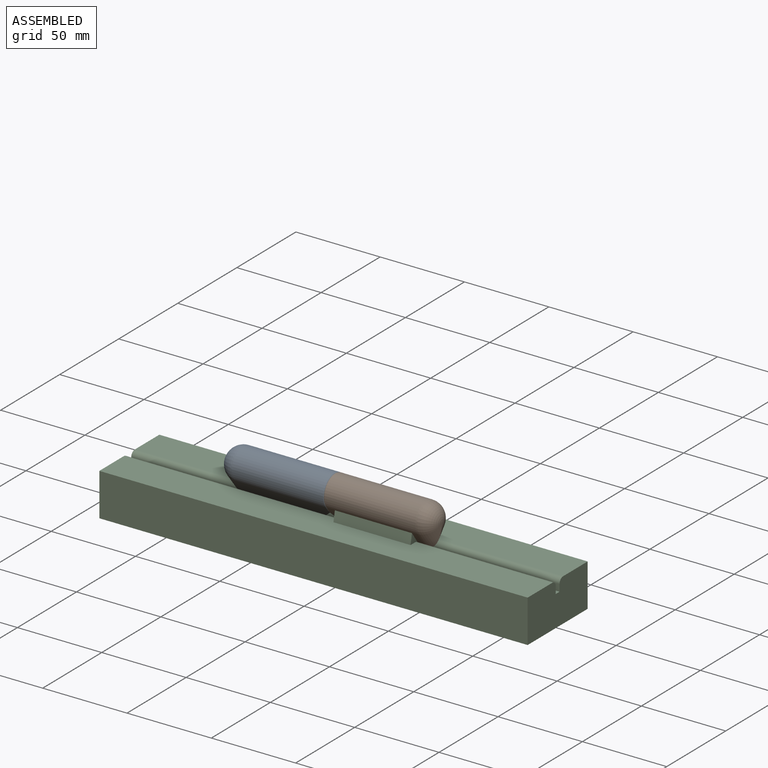
[diagram: assembled view]
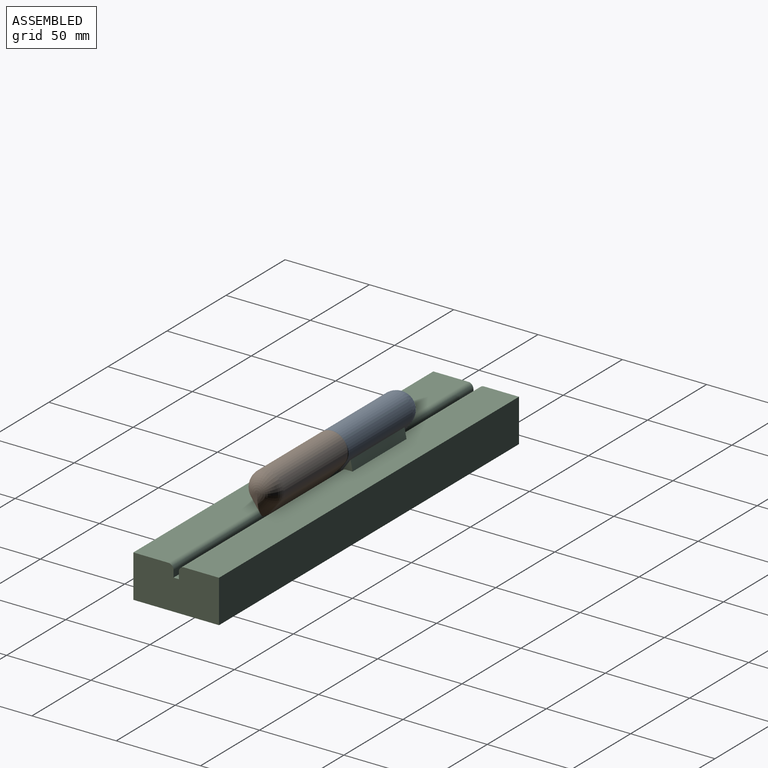
[diagram: assembled view, second angle]
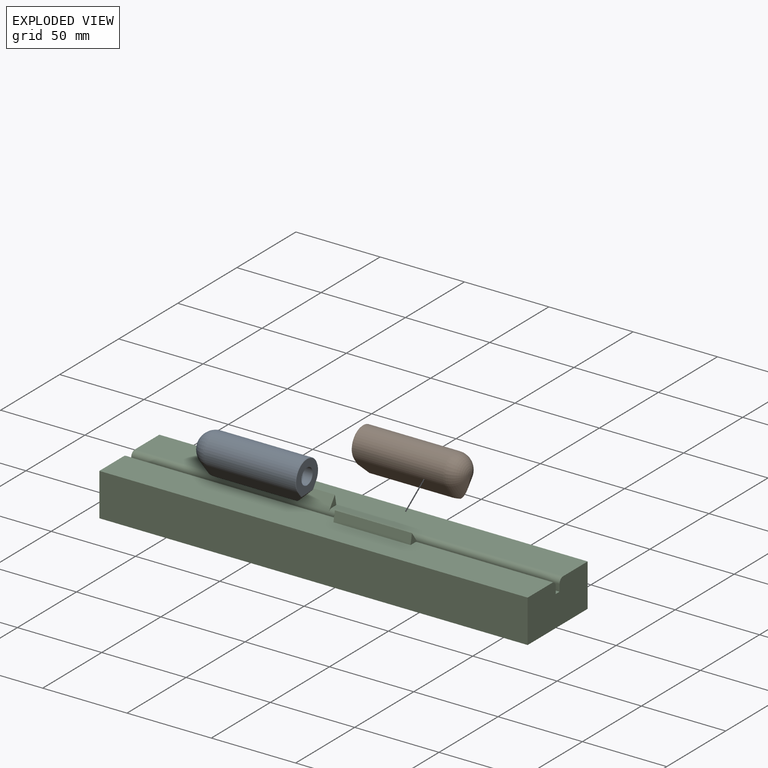
[diagram: exploded view]
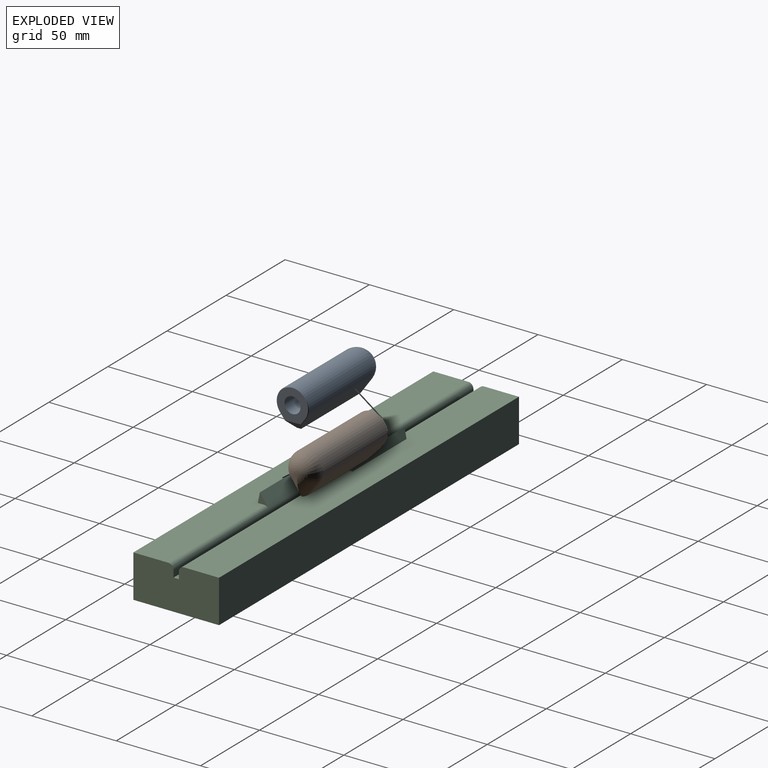
[diagram: exploded view, second angle]
ASSEMBLY  parts=3 mates=2
PART A: 15 faces, bbox 63.5x19.1x24.3 mm
  f0: cylinder r=9.53mm len=54.1mm, axis (1,0,0), area 2284.5mm2, adj f1,f3,f8,f13
  f1: plane 54.1x8.51mm, normal (0,-0.8,-0.6), area 561.6mm2, adj f0,f2,f9,f11,f14
  f2: plane 53.35x2.4mm, normal (0,0,-1), area 124.7mm2, adj f1,f3,f9,f10,f11
  f3: plane 54.1x8.51mm, normal (0,0.8,-0.6), area 561.6mm2, adj f0,f2,f10,f11,f12
  f4: plane 1.01x0.76mm, normal (-1,0,0), area 0.5mm2, adj f8,f9,f10
  f5: plane 18.54x18.43mm, normal (1,0,0), area 203.9mm2, adj f7,f11,f12,f13,f14
  f6: cone r=0mm half-angle=59deg, axis (1,0,0), area 83.1mm2, adj f7
  f7: cylinder r=4.76mm len=58.42mm, axis (1,0,0), area 1748.1mm2, adj f5,f6
  f8: torus R=0.38mm, axis (1,0,0), area 394.9mm2, adj f0,f4,f9,f10
  f9: cylinder r=9.14mm len=14.58mm, axis (0,-0.6,0.8), area 112.6mm2, adj f1,f2,f4,f8,f10
  f10: cylinder r=9.14mm len=14.58mm, axis (0,-0.6,-0.8), area 112.6mm2, adj f2,f3,f4,f8,f9
  f11: plane 9.67x5.08mm, normal (0.71,0,-0.71), area 44.6mm2, adj f1,f2,f3,f5,f12,f14
  f12: plane 3.83x2.9mm, normal (0.71,0.56,-0.43), area 1.6mm2, adj f3,f5,f11,f13
  f13: cone r=9.27mm half-angle=45deg, axis (-1,0,0), area 15mm2, adj f0,f5,f12,f14
  f14: plane 3.83x2.9mm, normal (0.71,-0.56,-0.43), area 1.6mm2, adj f1,f5,f11,f13
PART B: same geometry as A
PART C: 20 faces, bbox 254x50.8x31.4 mm
  f0: plane 254x20.76mm, normal (0,0,1), area 5097.3mm2, adj f1,f5,f9,f10,f16,f18,f19
  f1: cylinder r=3.05mm len=254mm, axis (1,0,0), area 1083.5mm2, adj f0,f6,f9,f10,f17,f18,f19
  f2: plane 254x20.76mm, normal (0,0,1), area 5097.3mm2, adj f3,f9,f10,f11,f13,f14,f15
  f3: plane 254x25.4mm, normal (0,-1,0), area 6451.6mm2, adj f2,f4,f9,f10
  f4: plane 254x50.8mm, normal (0,0,-1), area 12903.2mm2, adj f3,f5,f9,f10
  f5: plane 254x25.4mm, normal (0,1,0), area 6451.6mm2, adj f0,f4,f9,f10
  f6: plane 254x4.08mm, normal (0,-1,0), area 1035.6mm2, adj f1,f7,f9,f10
  f7: plane 254x3.18mm, normal (0,0,1), area 806.5mm2, adj f6,f8,f9,f10
  f8: plane 254x4.08mm, normal (0,1,0), area 1035.6mm2, adj f7,f9,f10,f11
  f9: plane 50.8x25.4mm, normal (-1,0,0), area 1263.7mm2, adj f0,f1,f2,f3,f4,f5,f6,f7
  f10: plane 50.8x25.4mm, normal (1,0,0), area 1263.7mm2, adj f0,f1,f2,f3,f4,f5,f6,f7
  f11: cylinder r=3.05mm len=254mm, axis (1,0,0), area 1083.5mm2, adj f2,f8,f9,f10,f12,f14,f15
  f12: plane 45.72x7.24mm, normal (0,0.81,0.58), area 406.5mm2, adj f11,f13,f14,f15
  f13: plane 45.72x5.96mm, normal (0,-0.98,0.2), area 277.8mm2, adj f2,f12,f14,f15
  f14: plane 7.24x6.35mm, normal (1,0,0), area 16.6mm2, adj f2,f11,f12,f13
  f15: plane 7.24x6.35mm, normal (-1,0,0), area 16.6mm2, adj f2,f11,f12,f13
  f16: plane 45.72x5.96mm, normal (0,0.98,0.2), area 277.8mm2, adj f0,f17,f18,f19
  f17: plane 45.72x7.24mm, normal (0,-0.81,0.58), area 406.5mm2, adj f1,f16,f18,f19
  f18: plane 7.24x6.35mm, normal (-1,0,0), area 16.6mm2, adj f0,f1,f16,f17
  f19: plane 7.24x6.35mm, normal (1,0,0), area 16.6mm2, adj f0,f1,f16,f17
PLACE A rot(axis=(1,0,0),1.5deg) t=(-162.67,-5.82,89.81)mm
PLACE B rot(axis=(0,0.01,1),180deg) t=(-162.67,-5.86,89.81)mm
PLACE C t=(-30.57,-22.2,52.27)mm
MATE fastened A.f3 <-> C.f17  axis (0,0.81,-0.58) through (-190.64,-1.11,80.01)mm
MATE fastened B.f3 <-> C.f12  axis (0,-0.81,-0.58) through (-134.71,-10.58,80.01)mm
